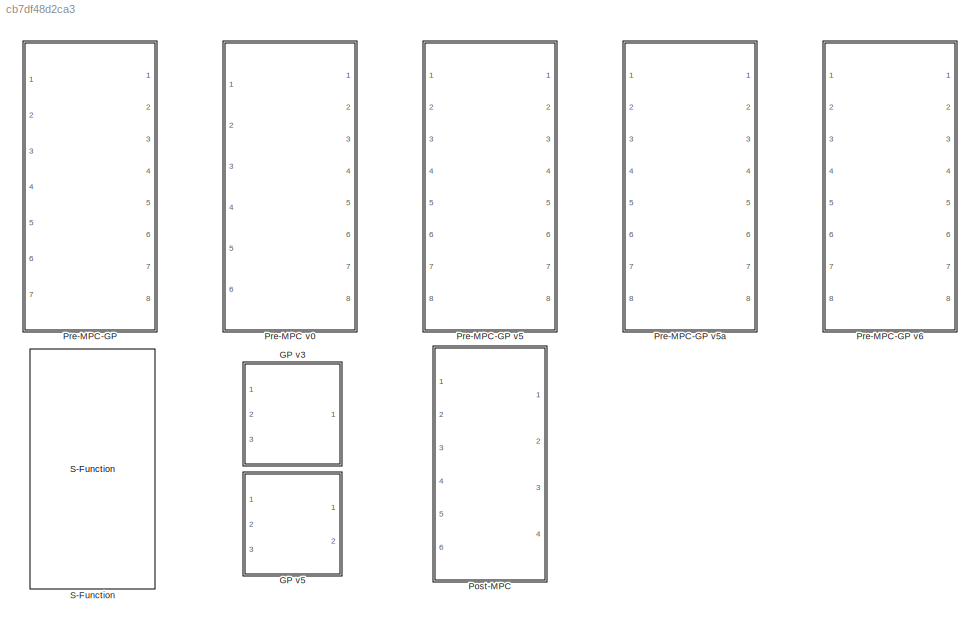
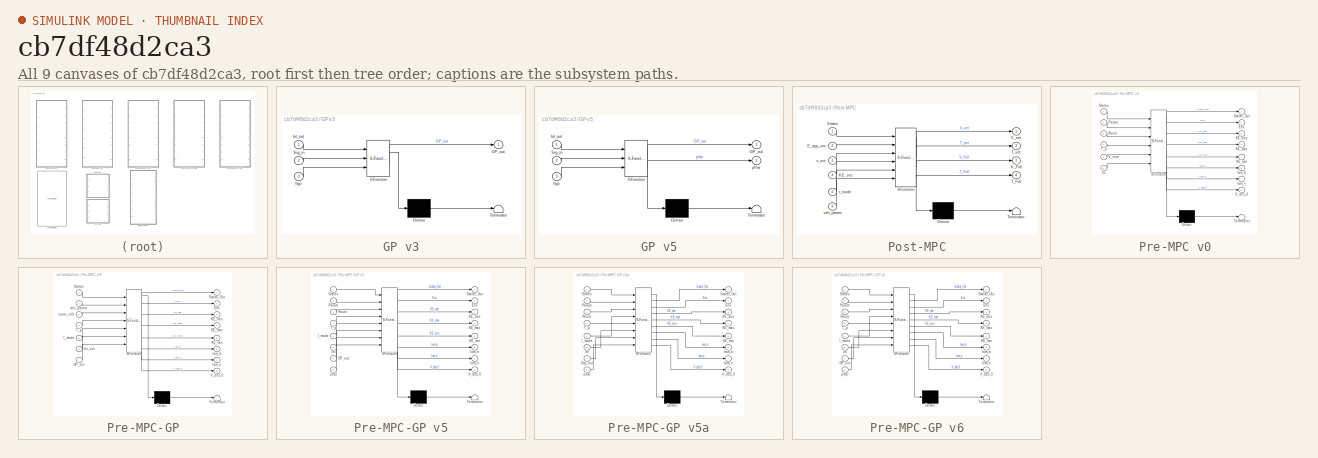
[diagram: thumbnail index - all 9 canvases of the model, root first then tree order]
MODEL slx_cb7df48d2ca3
KIND library
CONFIG AbsTol = auto
CONFIG EnableMultiTasking = off
CONFIG FixedStep = auto
CONFIG MaxStep = auto
CONFIG MinStep = auto
CONFIG RelTol = 1e-3
CONFIG SampleTimeConstraint = Unconstrained
CONFIG Solver = VariableStepAuto
CONFIG SolverName = VariableStepAuto
CONFIG StartTime = 0.0
CONFIG StopTime = 10.0
BLOCK [SubSystem] GP v3
  ErrorFcn = Stateflow.Translate.translate
  PermitHierarchicalResolution = ExplicitOnly
  Ports = [3, 1]
  RequestExecContextInheritance = off
  SFBlockType = MATLAB Function
  TreatAsAtomicUnit = on
BLOCK [Demux] GP v3/ Demux 
  Outputs = 1
  Ports = [1, 1]
BLOCK [S-Function] GP v3/ SFunction 
  EnableBusSupport = off
  FunctionName = sf_sfun
  PortCounts = [3 2]
  Ports = [3, 2]
  SFcnIsStateOwnerBlock = off
  SFunctionDeploymentMode = off
  Tag = Stateflow S-Function 3
BLOCK [Terminator] GP v3/ Terminator 
BLOCK [Outport] GP v3/GP_out
  VectorParamsAs1DForOutWhenUnconnected = off
BLOCK [Inport] GP v3/Int_out
BLOCK [Inport] GP v3/Sig_in
  Port = 2
BLOCK [Inport] GP v3/hyp
  Port = 3
BLOCK [SubSystem] GP v5
  ErrorFcn = Stateflow.Translate.translate
  PermitHierarchicalResolution = ExplicitOnly
  Ports = [3, 2]
  RequestExecContextInheritance = off
  SFBlockType = MATLAB Function
  TreatAsAtomicUnit = on
BLOCK [Demux] GP v5/ Demux 
  Outputs = 1
  Ports = [1, 1]
BLOCK [S-Function] GP v5/ SFunction 
  EnableBusSupport = off
  FunctionName = sf_sfun
  PortCounts = [3 3]
  Ports = [3, 3]
  SFcnIsStateOwnerBlock = off
  SFunctionDeploymentMode = off
  Tag = Stateflow S-Function 1
BLOCK [Terminator] GP v5/ Terminator 
BLOCK [Outport] GP v5/GP_out
  VectorParamsAs1DForOutWhenUnconnected = off
BLOCK [Inport] GP v5/Int_out
BLOCK [Inport] GP v5/Sig_in
  Port = 2
BLOCK [Inport] GP v5/hyp
  Port = 3
BLOCK [Outport] GP v5/pVar
  Port = 2
  VectorParamsAs1DForOutWhenUnconnected = off
BLOCK [SubSystem] Post-MPC
  ErrorFcn = Stateflow.Translate.translate
  PermitHierarchicalResolution = ExplicitOnly
  Ports = [6, 4]
  RequestExecContextInheritance = off
  SFBlockType = MATLAB Function
  TreatAsAtomicUnit = on
BLOCK [Demux] Post-MPC/ Demux 
  Outputs = 1
  Ports = [1, 1]
BLOCK [S-Function] Post-MPC/ SFunction 
  EnableBusSupport = off
  FunctionName = sf_sfun
  PortCounts = [6 5]
  Ports = [6, 5]
  SFcnIsStateOwnerBlock = off
  SFunctionDeploymentMode = off
  Tag = Stateflow S-Function 11
BLOCK [Terminator] Post-MPC/ Terminator 
BLOCK [Inport] Post-MPC/E_app_vec
  Port = 2
BLOCK [Inport] Post-MPC/KE_vec
  Port = 4
BLOCK [Inport] Post-MPC/States
BLOCK [Outport] Post-MPC/T_Full
  Port = 4
  VectorParamsAs1DForOutWhenUnconnected = off
BLOCK [Outport] Post-MPC/T_set
  Port = 2
  VectorParamsAs1DForOutWhenUnconnected = off
BLOCK [Outport] Post-MPC/V_Full
  Port = 3
  VectorParamsAs1DForOutWhenUnconnected = off
BLOCK [Outport] Post-MPC/V_set
  VectorParamsAs1DForOutWhenUnconnected = off
BLOCK [Inport] Post-MPC/s_out
  Port = 3
BLOCK [Inport] Post-MPC/t_mode
  Port = 5
BLOCK [Inport] Post-MPC/veh_param
  Port = 6
BLOCK [SubSystem] Pre-MPC v0
  ErrorFcn = Stateflow.Translate.translate
  PermitHierarchicalResolution = ExplicitOnly
  Ports = [6, 8]
  RequestExecContextInheritance = off
  SFBlockType = MATLAB Function
  TreatAsAtomicUnit = on
BLOCK [Demux] Pre-MPC v0/ Demux 
  Outputs = 1
  Ports = [1, 1]
BLOCK [S-Function] Pre-MPC v0/ SFunction 
  EnableBusSupport = off
  FunctionName = sf_sfun
  PortCounts = [6 9]
  Ports = [6, 9]
  SFcnIsStateOwnerBlock = off
  SFunctionDeploymentMode = off
  Tag = Stateflow S-Function 4
BLOCK [Terminator] Pre-MPC v0/ Terminator 
BLOCK [Outport] Pre-MPC v0/Env
  Port = 2
  VectorParamsAs1DForOutWhenUnconnected = off
BLOCK [Outport] Pre-MPC v0/KE_des
  Port = 3
  VectorParamsAs1DForOutWhenUnconnected = off
BLOCK [Outport] Pre-MPC v0/KE_max
  Port = 4
  VectorParamsAs1DForOutWhenUnconnected = off
BLOCK [Outport] Pre-MPC v0/KE_min
  Port = 5
  VectorParamsAs1DForOutWhenUnconnected = off
BLOCK [Inport] Pre-MPC v0/Param
  Port = 2
BLOCK [Inport] Pre-MPC v0/Route
  Port = 3
BLOCK [Outport] Pre-MPC v0/Scalar_Out
  VectorParamsAs1DForOutWhenUnconnected = off
BLOCK [Inport] Pre-MPC v0/States
BLOCK [Inport] Pre-MPC v0/T_p
  Port = 4
BLOCK [Outport] Pre-MPC v0/V_des_0
  Port = 8
  VectorParamsAs1DForOutWhenUnconnected = off
BLOCK [Inport] Pre-MPC v0/V_new
  Port = 5
BLOCK [Inport] Pre-MPC v0/dx
  Port = 6
BLOCK [Outport] Pre-MPC v0/lam_b
  Port = 6
  VectorParamsAs1DForOutWhenUnconnected = off
BLOCK [Outport] Pre-MPC v0/lam_e
  Port = 7
  VectorParamsAs1DForOutWhenUnconnected = off
BLOCK [SubSystem] Pre-MPC-GP
  ErrorFcn = Stateflow.Translate.translate
  PermitHierarchicalResolution = ExplicitOnly
  Ports = [7, 8]
  RequestExecContextInheritance = off
  SFBlockType = MATLAB Function
  TreatAsAtomicUnit = on
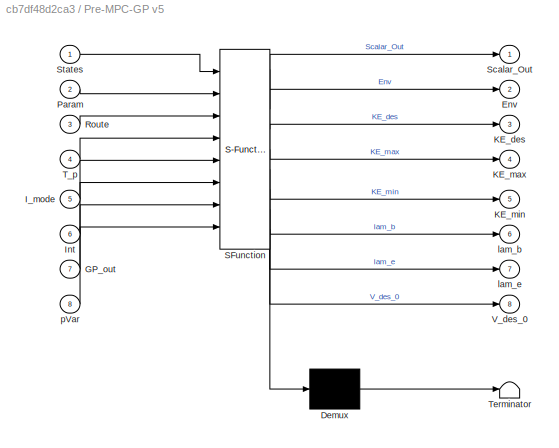
BLOCK [SubSystem] Pre-MPC-GP v5
  ErrorFcn = Stateflow.Translate.translate
  PermitHierarchicalResolution = ExplicitOnly
  Ports = [8, 8]
  RequestExecContextInheritance = off
  SFBlockType = MATLAB Function
  TreatAsAtomicUnit = on
BLOCK [Demux] Pre-MPC-GP v5/ Demux 
  Outputs = 1
  Ports = [1, 1]
BLOCK [S-Function] Pre-MPC-GP v5/ SFunction 
  EnableBusSupport = off
  FunctionName = sf_sfun
  PortCounts = [8 9]
  Ports = [8, 9]
  SFcnIsStateOwnerBlock = off
  SFunctionDeploymentMode = off
  Tag = Stateflow S-Function 5
BLOCK [Terminator] Pre-MPC-GP v5/ Terminator 
BLOCK [Outport] Pre-MPC-GP v5/Env
  Port = 2
  VectorParamsAs1DForOutWhenUnconnected = off
BLOCK [Inport] Pre-MPC-GP v5/GP_out
  Port = 7
BLOCK [Inport] Pre-MPC-GP v5/I_mode
  Port = 5
BLOCK [Inport] Pre-MPC-GP v5/Int
  Port = 6
BLOCK [Outport] Pre-MPC-GP v5/KE_des
  Port = 3
  VectorParamsAs1DForOutWhenUnconnected = off
BLOCK [Outport] Pre-MPC-GP v5/KE_max
  Port = 4
  VectorParamsAs1DForOutWhenUnconnected = off
BLOCK [Outport] Pre-MPC-GP v5/KE_min
  Port = 5
  VectorParamsAs1DForOutWhenUnconnected = off
BLOCK [Inport] Pre-MPC-GP v5/Param
  Port = 2
BLOCK [Inport] Pre-MPC-GP v5/Route
  Port = 3
BLOCK [Outport] Pre-MPC-GP v5/Scalar_Out
  VectorParamsAs1DForOutWhenUnconnected = off
BLOCK [Inport] Pre-MPC-GP v5/States
BLOCK [Inport] Pre-MPC-GP v5/T_p
  Port = 4
BLOCK [Outport] Pre-MPC-GP v5/V_des_0
  Port = 8
  VectorParamsAs1DForOutWhenUnconnected = off
BLOCK [Outport] Pre-MPC-GP v5/lam_b
  Port = 6
  VectorParamsAs1DForOutWhenUnconnected = off
BLOCK [Outport] Pre-MPC-GP v5/lam_e
  Port = 7
  VectorParamsAs1DForOutWhenUnconnected = off
BLOCK [Inport] Pre-MPC-GP v5/pVar
  Port = 8
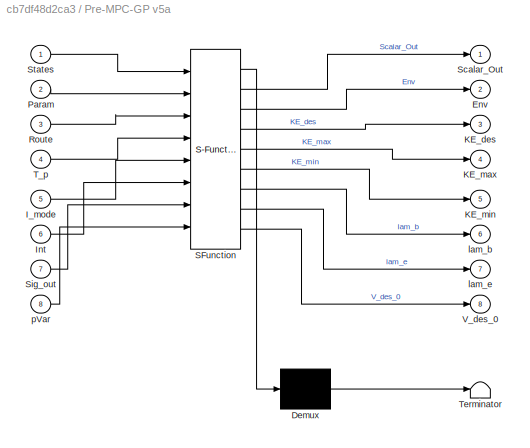
BLOCK [SubSystem] Pre-MPC-GP v5a
  ErrorFcn = Stateflow.Translate.translate
  PermitHierarchicalResolution = ExplicitOnly
  Ports = [8, 8]
  RequestExecContextInheritance = off
  SFBlockType = MATLAB Function
  TreatAsAtomicUnit = on
BLOCK [Demux] Pre-MPC-GP v5a/ Demux 
  Outputs = 1
  Ports = [1, 1]
BLOCK [S-Function] Pre-MPC-GP v5a/ SFunction 
  EnableBusSupport = off
  FunctionName = sf_sfun
  PortCounts = [8 9]
  Ports = [8, 9]
  SFcnIsStateOwnerBlock = off
  SFunctionDeploymentMode = off
  Tag = Stateflow S-Function 6
BLOCK [Terminator] Pre-MPC-GP v5a/ Terminator 
BLOCK [Outport] Pre-MPC-GP v5a/Env
  Port = 2
  VectorParamsAs1DForOutWhenUnconnected = off
BLOCK [Inport] Pre-MPC-GP v5a/I_mode
  Port = 5
BLOCK [Inport] Pre-MPC-GP v5a/Int
  Port = 6
BLOCK [Outport] Pre-MPC-GP v5a/KE_des
  Port = 3
  VectorParamsAs1DForOutWhenUnconnected = off
BLOCK [Outport] Pre-MPC-GP v5a/KE_max
  Port = 4
  VectorParamsAs1DForOutWhenUnconnected = off
BLOCK [Outport] Pre-MPC-GP v5a/KE_min
  Port = 5
  VectorParamsAs1DForOutWhenUnconnected = off
BLOCK [Inport] Pre-MPC-GP v5a/Param
  Port = 2
BLOCK [Inport] Pre-MPC-GP v5a/Route
  Port = 3
BLOCK [Outport] Pre-MPC-GP v5a/Scalar_Out
  VectorParamsAs1DForOutWhenUnconnected = off
BLOCK [Inport] Pre-MPC-GP v5a/Sig_out
  Port = 7
BLOCK [Inport] Pre-MPC-GP v5a/States
BLOCK [Inport] Pre-MPC-GP v5a/T_p
  Port = 4
BLOCK [Outport] Pre-MPC-GP v5a/V_des_0
  Port = 8
  VectorParamsAs1DForOutWhenUnconnected = off
BLOCK [Outport] Pre-MPC-GP v5a/lam_b
  Port = 6
  VectorParamsAs1DForOutWhenUnconnected = off
BLOCK [Outport] Pre-MPC-GP v5a/lam_e
  Port = 7
  VectorParamsAs1DForOutWhenUnconnected = off
BLOCK [Inport] Pre-MPC-GP v5a/pVar
  Port = 8
BLOCK [SubSystem] Pre-MPC-GP v6
  ErrorFcn = Stateflow.Translate.translate
  PermitHierarchicalResolution = ExplicitOnly
  Ports = [8, 8]
  RequestExecContextInheritance = off
  SFBlockType = MATLAB Function
  TreatAsAtomicUnit = on
BLOCK [Demux] Pre-MPC-GP v6/ Demux 
  Outputs = 1
  Ports = [1, 1]
BLOCK [S-Function] Pre-MPC-GP v6/ SFunction 
  EnableBusSupport = off
  FunctionName = sf_sfun
  PortCounts = [8 9]
  Ports = [8, 9]
  SFcnIsStateOwnerBlock = off
  SFunctionDeploymentMode = off
  Tag = Stateflow S-Function 7
BLOCK [Terminator] Pre-MPC-GP v6/ Terminator 
BLOCK [Outport] Pre-MPC-GP v6/Env
  Port = 2
  VectorParamsAs1DForOutWhenUnconnected = off
BLOCK [Inport] Pre-MPC-GP v6/GP_out
  Port = 7
BLOCK [Inport] Pre-MPC-GP v6/I_mode
  Port = 5
BLOCK [Inport] Pre-MPC-GP v6/Int
  Port = 6
BLOCK [Outport] Pre-MPC-GP v6/KE_des
  Port = 3
  VectorParamsAs1DForOutWhenUnconnected = off
BLOCK [Outport] Pre-MPC-GP v6/KE_max
  Port = 4
  VectorParamsAs1DForOutWhenUnconnected = off
BLOCK [Outport] Pre-MPC-GP v6/KE_min
  Port = 5
  VectorParamsAs1DForOutWhenUnconnected = off
BLOCK [Inport] Pre-MPC-GP v6/Param
  Port = 2
BLOCK [Inport] Pre-MPC-GP v6/Route
  Port = 3
BLOCK [Outport] Pre-MPC-GP v6/Scalar_Out
  VectorParamsAs1DForOutWhenUnconnected = off
BLOCK [Inport] Pre-MPC-GP v6/States
BLOCK [Inport] Pre-MPC-GP v6/T_p
  Port = 4
BLOCK [Outport] Pre-MPC-GP v6/V_des_0
  Port = 8
  VectorParamsAs1DForOutWhenUnconnected = off
BLOCK [Outport] Pre-MPC-GP v6/lam_b
  Port = 6
  VectorParamsAs1DForOutWhenUnconnected = off
BLOCK [Outport] Pre-MPC-GP v6/lam_e
  Port = 7
  VectorParamsAs1DForOutWhenUnconnected = off
BLOCK [Inport] Pre-MPC-GP v6/pVar
  Port = 8
BLOCK [Demux] Pre-MPC-GP/ Demux 
  Outputs = 1
  Ports = [1, 1]
BLOCK [S-Function] Pre-MPC-GP/ SFunction 
  EnableBusSupport = off
  FunctionName = sf_sfun
  PortCounts = [7 9]
  Ports = [7, 9]
  SFcnIsStateOwnerBlock = off
  SFunctionDeploymentMode = off
  Tag = Stateflow S-Function 2
BLOCK [Terminator] Pre-MPC-GP/ Terminator 
BLOCK [Outport] Pre-MPC-GP/Env
  Port = 2
  VectorParamsAs1DForOutWhenUnconnected = off
BLOCK [Inport] Pre-MPC-GP/GP_out
  Port = 7
BLOCK [Inport] Pre-MPC-GP/I_mode
  Port = 5
BLOCK [Inport] Pre-MPC-GP/Int_out
  Port = 6
BLOCK [Outport] Pre-MPC-GP/KE_des
  Port = 3
  VectorParamsAs1DForOutWhenUnconnected = off
BLOCK [Outport] Pre-MPC-GP/KE_max
  Port = 4
  VectorParamsAs1DForOutWhenUnconnected = off
BLOCK [Outport] Pre-MPC-GP/KE_min
  Port = 5
  VectorParamsAs1DForOutWhenUnconnected = off
BLOCK [Outport] Pre-MPC-GP/Scalar_Out
  VectorParamsAs1DForOutWhenUnconnected = off
BLOCK [Inport] Pre-MPC-GP/States
BLOCK [Inport] Pre-MPC-GP/T_p
  Port = 4
BLOCK [Outport] Pre-MPC-GP/V_des_0
  Port = 8
  VectorParamsAs1DForOutWhenUnconnected = off
BLOCK [Outport] Pre-MPC-GP/lam_b
  Port = 6
  VectorParamsAs1DForOutWhenUnconnected = off
BLOCK [Outport] Pre-MPC-GP/lam_e
  Port = 7
  VectorParamsAs1DForOutWhenUnconnected = off
BLOCK [Inport] Pre-MPC-GP/route_info
  Port = 3
BLOCK [Inport] Pre-MPC-GP/veh_param
  Port = 2
BLOCK [S-Function] S-Function
  EnableBusSupport = off
  FunctionName = solver_51_v2
  Ports = [7, 2]
  SFcnIsStateOwnerBlock = off
  SFunctionDeploymentMode = off
  SFunctionModules = solver_51_v2_wrapper
CHART Pre-MPC-GP v5 states=1 transitions=1
  STATE_LABEL 'eML_blk_kernel()'
  STATE_LABEL 'SCRIPT:\nfunction [Scalar_Out,Env,KE_des,KE_max,KE_min,lam_b,lam_e,V_des_0] = ...\n    fcn(States,Param,Route,T_p,I_mode,Int,GP_out,pVar)\n%%  Extract Inputs\nt_0 = States(3);                                        %   s - Sim time\nx_0 = States(1);                                        %   m - Current position\nv_0 = States(2);                                        %   m/s - Current velocity \nGR = St...<+3608ch>'
CHART Pre-MPC-GP v5a states=1 transitions=1
  STATE_LABEL 'eML_blk_kernel()'
  STATE_LABEL 'SCRIPT:\nfunction [Scalar_Out,Env,KE_des,KE_max,KE_min,lam_b,lam_e,V_des_0] = ...\n    fcn(States,Param,Route,T_p,I_mode,Int,Sig_out,pVar)\n%%  Extract Inputs\nt_0 = States(3);                                        %   s - Sim time\nx_0 = States(1);                                        %   m - Current position\nv_0 = States(2);                                        %   m/s - Current velocity \nGR = S...<+3608ch>'
CHART Pre-MPC-GP v6 states=1 transitions=1
  STATE_LABEL 'eML_blk_kernel()'
  STATE_LABEL 'SCRIPT:\nfunction [Scalar_Out,Env,KE_des,KE_max,KE_min,lam_b,lam_e,V_des_0] = ...\n    fcn(States,Param,Route,T_p,I_mode,Int,GP_out,pVar)\n%%  Extract Inputs\nt_0 = States(3);                                        %   s - Sim time\nx_0 = States(1);                                        %   m - Current position\nv_0 = States(2);                                        %   m/s - Current velocity \nGR = St...<+3608ch>'
CHART Post-MPC states=1 transitions=1
  STATE_LABEL 'eML_blk_kernel()'
  STATE_LABEL 'SCRIPT:\nfunction [V_set,T_set,V_Full,T_Full] = fcn(States,...\n    E_app_vec,s_out,KE_vec,t_mode,veh_param)\n\nm = veh_param(3);                                   %   kg - Base vehicle mass\nr_wh = veh_param(7);                                %   m - Wheel radius\nv_0 = States(2);\nt_0 = States(3);\n\nnc_steps = length(KE_vec);\ndx = 10;\nKE = zeros(1,nc_steps);\nU_app_ref = E_app_vec/dx; \nKE(1) = s_out(2);\n...<+1312ch>'
CHART GP v5 states=1 transitions=1
  STATE_LABEL 'eML_blk_kernel()'
  STATE_LABEL 'SCRIPT:\nfunction [GP_out,pVar] = GP_v4(Int_out,Sig_in,hyp)\n\nL_0 = Int_out(:,5);                             %   What is known\nN = length(Sig_in(~isnan(Sig_in(:,1,1))));      %   # of intersections \nM = length(Sig_in(:,1,1));                      %   # of temp placeholders\nm = 7;                                          %   # of future predictions\nGP_out = NaN*ones(M,m,4);                       %  ...<+2626ch>'
CHART Pre-MPC-GP states=1 transitions=1
  STATE_LABEL 'eML_blk_kernel()'
  STATE_LABEL 'SCRIPT:\nfunction [Scalar_Out,Env,KE_des,KE_max,KE_min,lam_b,lam_e,V_des_0] = ...\n    fcn(States,veh_param,route_info,T_p,I_mode,Int_out,GP_out)\n%%  \nt_0 = States(3);                                        %   s - Sim time\nx_0 = States(1);                                        %   m - Current position\nv_0 = States(2);                                        %   m/s - Current velocity \nGR = States(4...<+3608ch>'
CHART GP v3 states=1 transitions=1
  STATE_LABEL 'eML_blk_kernel()'
  STATE_LABEL 'SCRIPT:\nfunction GP_out = GP_v3(Int_out,Sig_in,hyp)\n\nL_0 = Int_out(:,5);                             %   s - Cycle start times\nN = length(Sig_in(~isnan(Sig_in(:,1,1))));      %   # of intersections \nM = length(Sig_in(:,1,1));                      %   # of temp placeholders\nn = length(Sig_in(1,:,1));                      %   # of past data points\nm = 6;                                          %   ...<+1727ch>'
CHART Pre-MPC v0 states=1 transitions=1
  STATE_LABEL 'eML_blk_kernel()'
  STATE_LABEL 'SCRIPT:\nfunction [Scalar_Out,Env,KE_des,KE_max,KE_min,lam_b,lam_e,V_des_0] = ...\n    fcn(States,Param,Route,T_p,V_new,dx)\n%%  Extract Inputs\nt_0 = States(3);                                        %   s - Sim time\nx_0 = States(1);                                        %   m - Current position\nv_0 = States(2);                                        %   m/s - Current velocity \nGR = States(4);      ...<+3411ch>'
CHART  states=0 transitions=0
CHART  states=0 transitions=0
CHART  states=0 transitions=0
CHART  states=0 transitions=0
CHART  states=0 transitions=0
CHART  states=0 transitions=0
CHART  states=0 transitions=0
CHART  states=0 transitions=0
